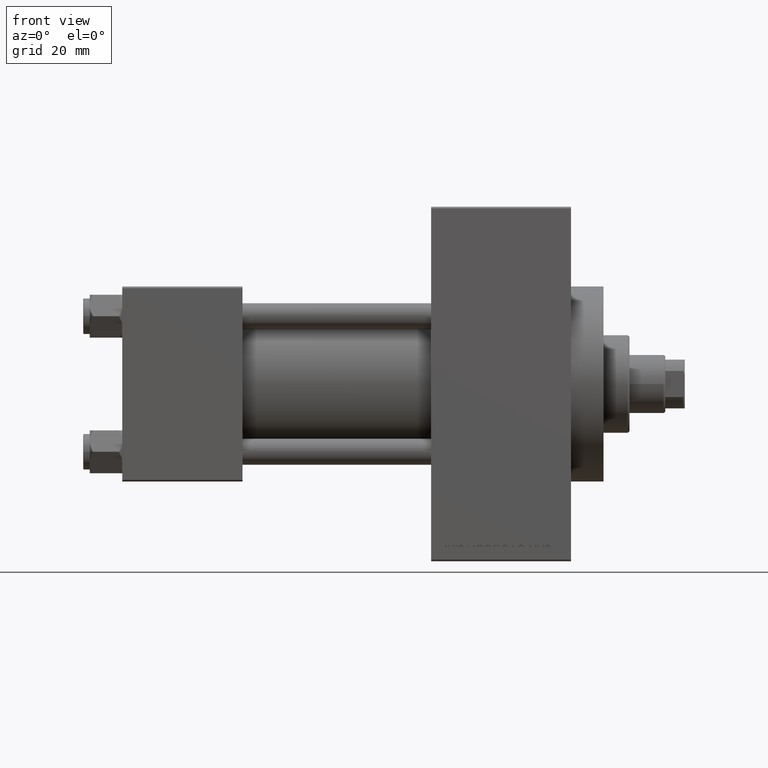
[diagram: clean part render]
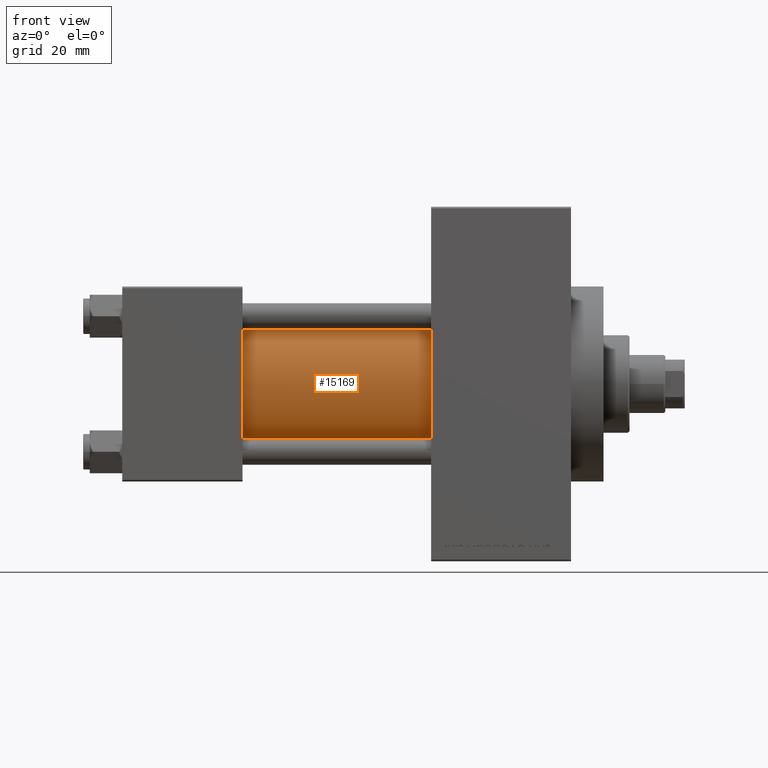
[diagram: same view with one face highlighted and labeled with its STEP entity id]
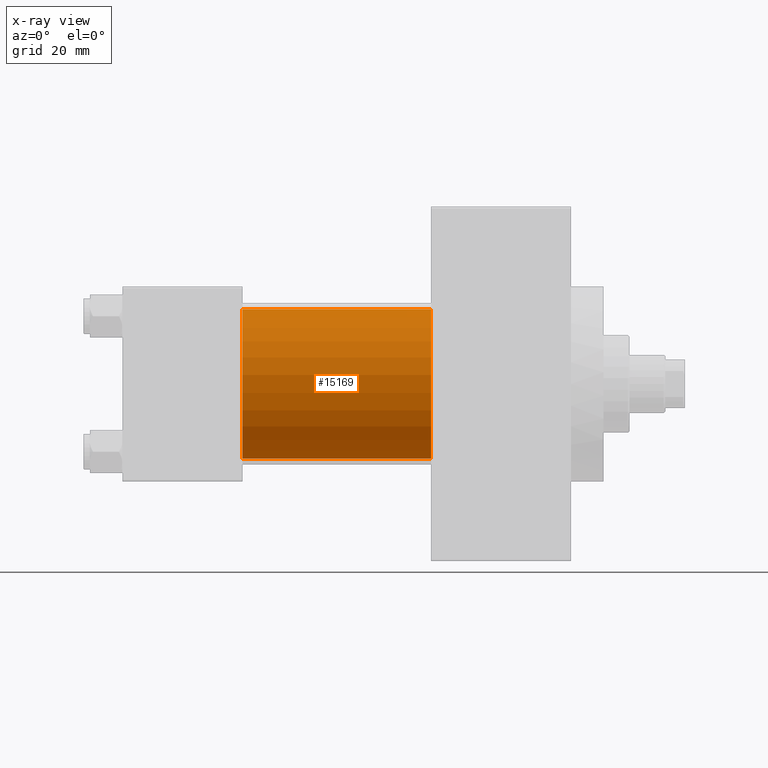
[diagram: x-ray of the same camera — body ghosted, the highlighted face saturated]
A machine part, front view. The second image highlights one B-rep face of the part: STEP entity #15169.
The next image is the same camera in x-ray: the body ghosted, the highlighted face saturated — about 0% of this face is hidden behind the body in this view.
In plain terms, the highlighted cylindrical surface (partial cylindrical patch) has radius 23 mm, axis along (-1, -0, -0).
Its self-contained STEP definition (entity closure, byte-faithful):
#2428 = DIRECTION ( 'NONE',  ( 0.000000000000000000, 0.000000000000000000, 1.000000000000000000 ) ) ;
#4034 = EDGE_LOOP ( 'NONE', ( #12636, #19862, #29134, #18040 ) ) ;
#7372 = VECTOR ( 'NONE', #10803, 1000.000000000000000 ) ;
#7408 = CARTESIAN_POINT ( 'NONE',  ( 95.00000000000000000, -2.602085213965210642E-15, 0.000000000000000000 ) ) ;
#8067 = LINE ( 'NONE', #44720, #7372 ) ;
#8080 = EDGE_CURVE ( 'NONE', #9582, #44857, #9889, .T. ) ;
#8140 = CIRCLE ( 'NONE', #34236, 23.00000000000000000 ) ;
#9582 = VERTEX_POINT ( 'NONE', #24610 ) ;
#9889 = CIRCLE ( 'NONE', #32041, 23.00000000000000000 ) ;
#10055 = CARTESIAN_POINT ( 'NONE',  ( 37.00000000000000000, 2.146024240737012665E-16, -23.00000000000000000 ) ) ;
#10403 = AXIS2_PLACEMENT_3D ( 'NONE', #7408, #22021, #25721 ) ;
#10803 = DIRECTION ( 'NONE',  ( -1.000000000000000000, -0.000000000000000000, -0.000000000000000000 ) ) ;
#11367 = CYLINDRICAL_SURFACE ( 'NONE', #10403, 23.00000000000000000 ) ;
#12636 = ORIENTED_EDGE ( 'NONE', *, *, #46225, .F. ) ;
#13104 = CARTESIAN_POINT ( 'NONE',  ( 37.00000000000000000, -2.602085213965210642E-15, 0.000000000000000000 ) ) ;
#14479 = VECTOR ( 'NONE', #31815, 1000.000000000000000 ) ;
#14790 = DIRECTION ( 'NONE',  ( 0.000000000000000000, 0.000000000000000000, -1.000000000000000000 ) ) ;
#15169 = ADVANCED_FACE ( 'NONE', ( #41322 ), #11367, .T. ) ;
#16723 = CARTESIAN_POINT ( 'NONE',  ( 95.00000000000000000, 2.146024240737012665E-16, -23.00000000000000000 ) ) ;
#18040 = ORIENTED_EDGE ( 'NONE', *, *, #45262, .T. ) ;
#19409 = EDGE_CURVE ( 'NONE', #9582, #48006, #8067, .T. ) ;
#19862 = ORIENTED_EDGE ( 'NONE', *, *, #8080, .F. ) ;
#22021 = DIRECTION ( 'NONE',  ( -1.000000000000000000, -0.000000000000000000, -0.000000000000000000 ) ) ;
#24484 = DIRECTION ( 'NONE',  ( 1.000000000000000000, -0.000000000000000000, 0.000000000000000000 ) ) ;
#24610 = CARTESIAN_POINT ( 'NONE',  ( 95.00000000000000000, -2.602085213965210642E-15, 23.00000000000000000 ) ) ;
#25610 = CARTESIAN_POINT ( 'NONE',  ( 37.00000000000000000, -2.602085213965210642E-15, 23.00000000000000000 ) ) ;
#25721 = DIRECTION ( 'NONE',  ( 0.000000000000000000, 0.000000000000000000, 1.000000000000000000 ) ) ;
#27859 = LINE ( 'NONE', #16723, #14479 ) ;
#29134 = ORIENTED_EDGE ( 'NONE', *, *, #19409, .T. ) ;
#29385 = CARTESIAN_POINT ( 'NONE',  ( 95.00000000000000000, -2.602085213965210642E-15, 0.000000000000000000 ) ) ;
#31815 = DIRECTION ( 'NONE',  ( -1.000000000000000000, -0.000000000000000000, -0.000000000000000000 ) ) ;
#32041 = AXIS2_PLACEMENT_3D ( 'NONE', #29385, #44494, #14790 ) ;
#34236 = AXIS2_PLACEMENT_3D ( 'NONE', #13104, #24484, #2428 ) ;
#41322 = FACE_OUTER_BOUND ( 'NONE', #4034, .T. ) ;
#44494 = DIRECTION ( 'NONE',  ( 1.000000000000000000, 0.000000000000000000, 0.000000000000000000 ) ) ;
#44619 = VERTEX_POINT ( 'NONE', #10055 ) ;
#44720 = CARTESIAN_POINT ( 'NONE',  ( 95.00000000000000000, -2.602085213965210642E-15, 23.00000000000000000 ) ) ;
#44857 = VERTEX_POINT ( 'NONE', #45670 ) ;
#45262 = EDGE_CURVE ( 'NONE', #48006, #44619, #8140, .T. ) ;
#45670 = CARTESIAN_POINT ( 'NONE',  ( 95.00000000000000000, 2.146024240737012665E-16, -23.00000000000000000 ) ) ;
#46225 = EDGE_CURVE ( 'NONE', #44857, #44619, #27859, .T. ) ;
#48006 = VERTEX_POINT ( 'NONE', #25610 ) ;